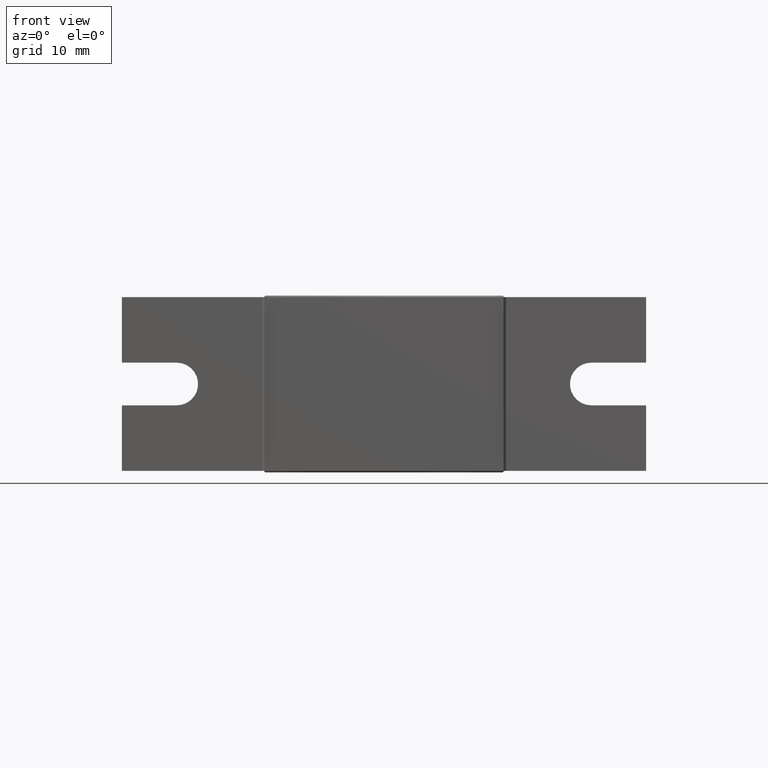
[diagram: clean part render]
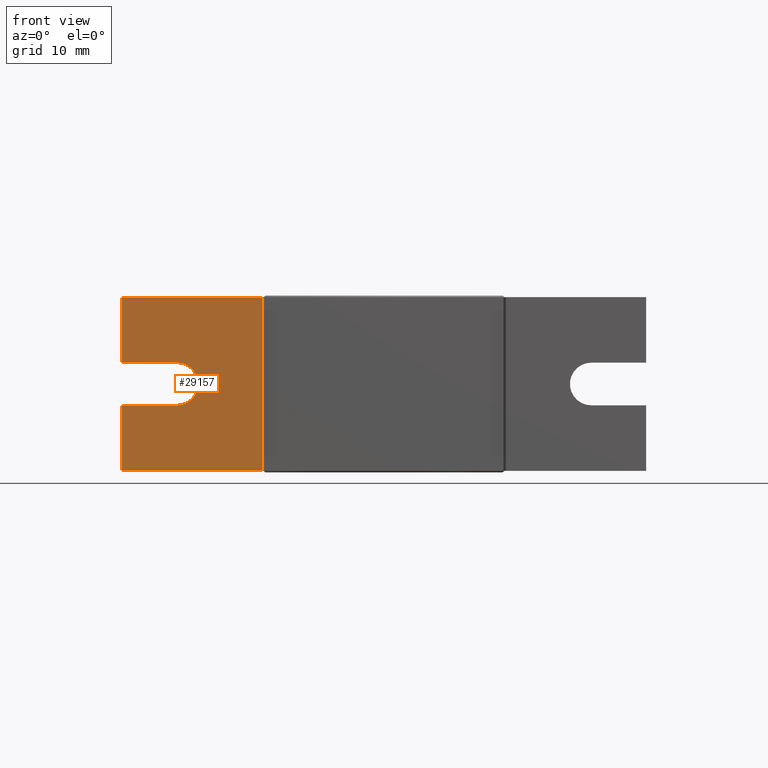
[diagram: same view with one face highlighted and labeled with its STEP entity id]
A machine part, front view. The second image highlights one B-rep face of the part: STEP entity #29157.
In plain terms, the highlighted planar face has unit normal (0, 1, 0).
Its self-contained STEP definition (entity closure, byte-faithful):
#126 = LINE ( 'NONE', #33506, #32701 ) ;
#462 = CARTESIAN_POINT ( 'NONE',  ( -43.00000000000000000, -25.50000000000000000, -3.500000000000000000 ) ) ;
#1100 = CARTESIAN_POINT ( 'NONE',  ( -34.00000000000000000, -25.50000000000000000, -3.500000000000000000 ) ) ;
#2111 = VECTOR ( 'NONE', #32453, 1000.000000000000000 ) ;
#3085 = CARTESIAN_POINT ( 'NONE',  ( -43.00000000000000000, -25.50000000000000000, 14.25000000000000000 ) ) ;
#4971 = VERTEX_POINT ( 'NONE', #1100 ) ;
#6211 = VECTOR ( 'NONE', #9484, 1000.000000000000000 ) ;
#6383 = CARTESIAN_POINT ( 'NONE',  ( -43.00000000000000000, -25.50000000000000000, 3.500000000000000000 ) ) ;
#6628 = EDGE_CURVE ( 'NONE', #27787, #25122, #22354, .T. ) ;
#6730 = CARTESIAN_POINT ( 'NONE',  ( -20.00000000000000000, -25.50000000000000000, -14.25000000000000000 ) ) ;
#7299 = CIRCLE ( 'NONE', #13864, 3.500000000000000000 ) ;
#7853 = EDGE_CURVE ( 'NONE', #10748, #35030, #21442, .T. ) ;
#7906 = DIRECTION ( 'NONE',  ( 0.0000000000000000000, 0.0000000000000000000, -1.000000000000000000 ) ) ;
#8219 = DIRECTION ( 'NONE',  ( 0.0000000000000000000, 0.0000000000000000000, -1.000000000000000000 ) ) ;
#9484 = DIRECTION ( 'NONE',  ( 1.000000000000000000, 0.0000000000000000000, 0.0000000000000000000 ) ) ;
#9931 = EDGE_CURVE ( 'NONE', #33262, #15808, #126, .T. ) ;
#10640 = CARTESIAN_POINT ( 'NONE',  ( -34.00000000000000000, -25.50000000000000000, -2.755364296100344900E-015 ) ) ;
#10748 = VERTEX_POINT ( 'NONE', #34716 ) ;
#10798 = EDGE_CURVE ( 'NONE', #15808, #4971, #7299, .T. ) ;
#11128 = DIRECTION ( 'NONE',  ( -1.000000000000000000, 0.0000000000000000000, 5.782411586589370500E-016 ) ) ;
#11288 = ORIENTED_EDGE ( 'NONE', *, *, #7853, .T. ) ;
#12141 = EDGE_CURVE ( 'NONE', #27787, #33262, #23316, .T. ) ;
#12286 = CARTESIAN_POINT ( 'NONE',  ( -43.00000000000000000, -25.50000000000000000, 14.25000000000000000 ) ) ;
#12845 = VECTOR ( 'NONE', #8219, 1000.000000000000000 ) ;
#12846 = CARTESIAN_POINT ( 'NONE',  ( -34.00000000000000000, -25.50000000000000000, 3.500000000000000000 ) ) ;
#13307 = VECTOR ( 'NONE', #11128, 1000.000000000000000 ) ;
#13495 = ORIENTED_EDGE ( 'NONE', *, *, #12141, .T. ) ;
#13831 = DIRECTION ( 'NONE',  ( 0.0000000000000000000, 1.000000000000000000, 0.0000000000000000000 ) ) ;
#13864 = AXIS2_PLACEMENT_3D ( 'NONE', #10640, #16281, #7906 ) ;
#14788 = VERTEX_POINT ( 'NONE', #26270 ) ;
#15808 = VERTEX_POINT ( 'NONE', #12846 ) ;
#15972 = VECTOR ( 'NONE', #27769, 1000.000000000000000 ) ;
#16281 = DIRECTION ( 'NONE',  ( 0.0000000000000000000, 1.000000000000000000, 0.0000000000000000000 ) ) ;
#17257 = LINE ( 'NONE', #6730, #31605 ) ;
#18039 = ORIENTED_EDGE ( 'NONE', *, *, #34588, .T. ) ;
#18882 = ORIENTED_EDGE ( 'NONE', *, *, #29857, .T. ) ;
#19314 = PLANE ( 'NONE',  #20326 ) ;
#20326 = AXIS2_PLACEMENT_3D ( 'NONE', #3085, #13831, #32735 ) ;
#20603 = ORIENTED_EDGE ( 'NONE', *, *, #10798, .T. ) ;
#20873 = DIRECTION ( 'NONE',  ( 1.000000000000000000, 0.0000000000000000000, 0.0000000000000000000 ) ) ;
#21224 = ORIENTED_EDGE ( 'NONE', *, *, #9931, .T. ) ;
#21442 = LINE ( 'NONE', #30887, #6211 ) ;
#21794 = LINE ( 'NONE', #462, #13307 ) ;
#22174 = LINE ( 'NONE', #29494, #12845 ) ;
#22354 = LINE ( 'NONE', #27657, #15972 ) ;
#22499 = CARTESIAN_POINT ( 'NONE',  ( -20.00000000000000000, -25.50000000000000000, 14.25000000000000000 ) ) ;
#22695 = CARTESIAN_POINT ( 'NONE',  ( -20.00000000000000000, -25.50000000000000000, -14.25000000000000000 ) ) ;
#23273 = ORIENTED_EDGE ( 'NONE', *, *, #6628, .F. ) ;
#23316 = LINE ( 'NONE', #23971, #2111 ) ;
#23971 = CARTESIAN_POINT ( 'NONE',  ( -43.00000000000000000, -25.50000000000000000, 14.25000000000000000 ) ) ;
#25122 = VERTEX_POINT ( 'NONE', #22499 ) ;
#25497 = DIRECTION ( 'NONE',  ( 0.0000000000000000000, 0.0000000000000000000, 1.000000000000000000 ) ) ;
#25563 = FACE_OUTER_BOUND ( 'NONE', #32876, .T. ) ;
#26052 = ORIENTED_EDGE ( 'NONE', *, *, #29110, .T. ) ;
#26270 = CARTESIAN_POINT ( 'NONE',  ( -43.00000000000000000, -25.50000000000000000, -3.500000000000000000 ) ) ;
#27657 = CARTESIAN_POINT ( 'NONE',  ( -43.00000000000000000, -25.50000000000000000, 14.25000000000000000 ) ) ;
#27769 = DIRECTION ( 'NONE',  ( 1.000000000000000000, 0.0000000000000000000, 0.0000000000000000000 ) ) ;
#27787 = VERTEX_POINT ( 'NONE', #12286 ) ;
#29110 = EDGE_CURVE ( 'NONE', #4971, #14788, #21794, .T. ) ;
#29157 = ADVANCED_FACE ( 'NONE', ( #25563 ), #19314, .F. ) ;
#29494 = CARTESIAN_POINT ( 'NONE',  ( -43.00000000000000000, -25.50000000000000000, 14.25000000000000000 ) ) ;
#29857 = EDGE_CURVE ( 'NONE', #14788, #10748, #22174, .T. ) ;
#30887 = CARTESIAN_POINT ( 'NONE',  ( -43.00000000000000000, -25.50000000000000000, -14.25000000000000000 ) ) ;
#31605 = VECTOR ( 'NONE', #25497, 1000.000000000000000 ) ;
#32453 = DIRECTION ( 'NONE',  ( 0.0000000000000000000, 0.0000000000000000000, -1.000000000000000000 ) ) ;
#32701 = VECTOR ( 'NONE', #20873, 1000.000000000000000 ) ;
#32735 = DIRECTION ( 'NONE',  ( 0.0000000000000000000, 0.0000000000000000000, 1.000000000000000000 ) ) ;
#32876 = EDGE_LOOP ( 'NONE', ( #20603, #26052, #18882, #11288, #18039, #23273, #13495, #21224 ) ) ;
#33262 = VERTEX_POINT ( 'NONE', #6383 ) ;
#33506 = CARTESIAN_POINT ( 'NONE',  ( -43.00000000000000000, -25.50000000000000000, 3.500000000000000000 ) ) ;
#34588 = EDGE_CURVE ( 'NONE', #35030, #25122, #17257, .T. ) ;
#34716 = CARTESIAN_POINT ( 'NONE',  ( -43.00000000000000000, -25.50000000000000000, -14.25000000000000000 ) ) ;
#35030 = VERTEX_POINT ( 'NONE', #22695 ) ;